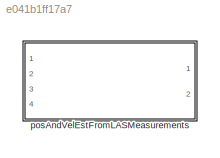
MODEL slx_e041b1ff17a7
KIND library
CONFIG AbsTol = auto
CONFIG EnableMultiTasking = off
CONFIG FixedStep = auto
CONFIG MaxStep = auto
CONFIG MinStep = auto
CONFIG RelTol = 1e-3
CONFIG SampleTimeConstraint = Unconstrained
CONFIG Solver = VariableStepAuto
CONFIG SolverName = VariableStepAuto
CONFIG StartTime = 0.0
CONFIG StopTime = 10.0
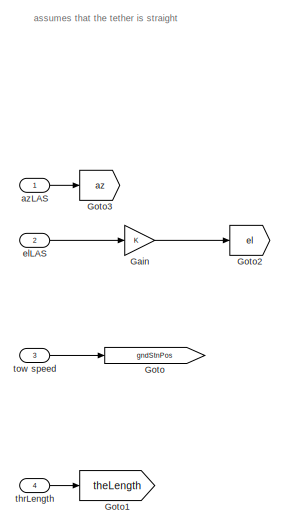
[diagram: posAndVelEstFromLASMeasurements - part 1/2, left side, full height]
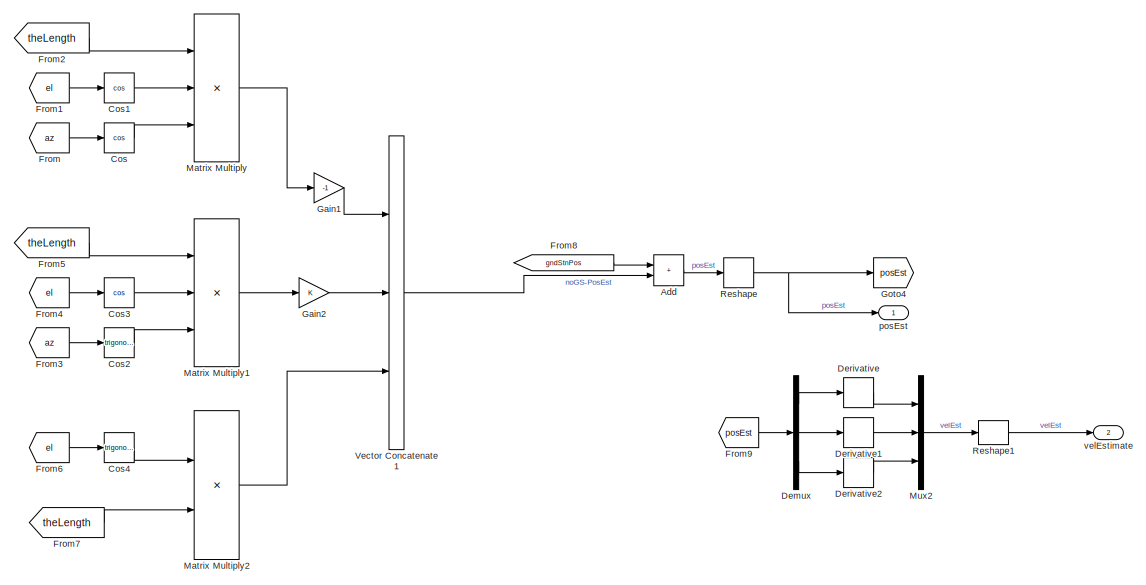
[diagram: posAndVelEstFromLASMeasurements - part 2/2, right side, full height]
BLOCK [SubSystem] posAndVelEstFromLASMeasurements
  Ports = [4, 2]
  RequestExecContextInheritance = off
BLOCK [Sum] posAndVelEstFromLASMeasurements/Add
  IconShape = rectangular
  Ports = [2, 1]
BLOCK [Trigonometry] posAndVelEstFromLASMeasurements/Cos
  Operator = cos
  Ports = [1, 1]
BLOCK [Trigonometry] posAndVelEstFromLASMeasurements/Cos1
  Operator = cos
  Ports = [1, 1]
BLOCK [Trigonometry] posAndVelEstFromLASMeasurements/Cos2
  Ports = [1, 1]
BLOCK [Trigonometry] posAndVelEstFromLASMeasurements/Cos3
  Operator = cos
  Ports = [1, 1]
BLOCK [Trigonometry] posAndVelEstFromLASMeasurements/Cos4
  Ports = [1, 1]
BLOCK [Demux] posAndVelEstFromLASMeasurements/Demux
  Outputs = 3
  Ports = [1, 3]
BLOCK [Derivative] posAndVelEstFromLASMeasurements/Derivative
BLOCK [Derivative] posAndVelEstFromLASMeasurements/Derivative1
BLOCK [Derivative] posAndVelEstFromLASMeasurements/Derivative2
BLOCK [From] posAndVelEstFromLASMeasurements/From
  GotoTag = az
BLOCK [From] posAndVelEstFromLASMeasurements/From1
  GotoTag = el
BLOCK [From] posAndVelEstFromLASMeasurements/From2
  GotoTag = theLength
BLOCK [From] posAndVelEstFromLASMeasurements/From3
  GotoTag = az
BLOCK [From] posAndVelEstFromLASMeasurements/From4
  GotoTag = el
BLOCK [From] posAndVelEstFromLASMeasurements/From5
  GotoTag = theLength
BLOCK [From] posAndVelEstFromLASMeasurements/From6
  GotoTag = el
BLOCK [From] posAndVelEstFromLASMeasurements/From7
  GotoTag = theLength
BLOCK [From] posAndVelEstFromLASMeasurements/From8
  GotoTag = gndStnPos
BLOCK [From] posAndVelEstFromLASMeasurements/From9
  GotoTag = posEst
BLOCK [Gain] posAndVelEstFromLASMeasurements/Gain
BLOCK [Gain] posAndVelEstFromLASMeasurements/Gain1
  Gain = -1
BLOCK [Gain] posAndVelEstFromLASMeasurements/Gain2
BLOCK [Goto] posAndVelEstFromLASMeasurements/Goto
  GotoTag = gndStnPos
BLOCK [Goto] posAndVelEstFromLASMeasurements/Goto1
  GotoTag = theLength
BLOCK [Goto] posAndVelEstFromLASMeasurements/Goto2
  GotoTag = el
BLOCK [Goto] posAndVelEstFromLASMeasurements/Goto3
  GotoTag = az
BLOCK [Goto] posAndVelEstFromLASMeasurements/Goto4
  GotoTag = posEst
BLOCK [Product] posAndVelEstFromLASMeasurements/Matrix Multiply
  Inputs = 3
  Ports = [3, 1]
BLOCK [Product] posAndVelEstFromLASMeasurements/Matrix Multiply1
  Inputs = 3
  Ports = [3, 1]
BLOCK [Product] posAndVelEstFromLASMeasurements/Matrix Multiply2
  Ports = [2, 1]
BLOCK [Mux] posAndVelEstFromLASMeasurements/Mux2
  DisplayOption = bar
  Inputs = 3
  Ports = [3, 1]
BLOCK [Reshape] posAndVelEstFromLASMeasurements/Reshape
  OutputDimensionality = Column vector (2-D)
  Ports = [1, 1]
BLOCK [Reshape] posAndVelEstFromLASMeasurements/Reshape1
  OutputDimensionality = Column vector (2-D)
  Ports = [1, 1]
BLOCK [Concatenate] posAndVelEstFromLASMeasurements/Vector Concatenate1
  NumInputs = 3
  Ports = [3, 1]
BLOCK [Inport] posAndVelEstFromLASMeasurements/azLAS
BLOCK [Inport] posAndVelEstFromLASMeasurements/elLAS
  Port = 2
BLOCK [Outport] posAndVelEstFromLASMeasurements/posEst
BLOCK [Inport] posAndVelEstFromLASMeasurements/thrLength
  Port = 4
BLOCK [Inport] posAndVelEstFromLASMeasurements/tow speed
  Port = 3
BLOCK [Outport] posAndVelEstFromLASMeasurements/velEstimate
  Port = 2
ANNOTATION posAndVelEstFromLASMeasurements: assumes that the tether is straight
LINE posAndVelEstFromLASMeasurements/Add:1 -> posAndVelEstFromLASMeasurements/Reshape:1
LINE posAndVelEstFromLASMeasurements/Cos1:1 -> posAndVelEstFromLASMeasurements/Matrix Multiply:2
LINE posAndVelEstFromLASMeasurements/Cos2:1 -> posAndVelEstFromLASMeasurements/Matrix Multiply1:3
LINE posAndVelEstFromLASMeasurements/Cos3:1 -> posAndVelEstFromLASMeasurements/Matrix Multiply1:2
LINE posAndVelEstFromLASMeasurements/Cos4:1 -> posAndVelEstFromLASMeasurements/Matrix Multiply2:1
LINE posAndVelEstFromLASMeasurements/Cos:1 -> posAndVelEstFromLASMeasurements/Matrix Multiply:3
LINE posAndVelEstFromLASMeasurements/Demux:1 -> posAndVelEstFromLASMeasurements/Derivative:1
LINE posAndVelEstFromLASMeasurements/Demux:2 -> posAndVelEstFromLASMeasurements/Derivative1:1
LINE posAndVelEstFromLASMeasurements/Demux:3 -> posAndVelEstFromLASMeasurements/Derivative2:1
LINE posAndVelEstFromLASMeasurements/Derivative1:1 -> posAndVelEstFromLASMeasurements/Mux2:2
LINE posAndVelEstFromLASMeasurements/Derivative2:1 -> posAndVelEstFromLASMeasurements/Mux2:3
LINE posAndVelEstFromLASMeasurements/Derivative:1 -> posAndVelEstFromLASMeasurements/Mux2:1
LINE posAndVelEstFromLASMeasurements/From1:1 -> posAndVelEstFromLASMeasurements/Cos1:1
LINE posAndVelEstFromLASMeasurements/From2:1 -> posAndVelEstFromLASMeasurements/Matrix Multiply:1
LINE posAndVelEstFromLASMeasurements/From3:1 -> posAndVelEstFromLASMeasurements/Cos2:1
LINE posAndVelEstFromLASMeasurements/From4:1 -> posAndVelEstFromLASMeasurements/Cos3:1
LINE posAndVelEstFromLASMeasurements/From5:1 -> posAndVelEstFromLASMeasurements/Matrix Multiply1:1
LINE posAndVelEstFromLASMeasurements/From6:1 -> posAndVelEstFromLASMeasurements/Cos4:1
LINE posAndVelEstFromLASMeasurements/From7:1 -> posAndVelEstFromLASMeasurements/Matrix Multiply2:2
LINE posAndVelEstFromLASMeasurements/From8:1 -> posAndVelEstFromLASMeasurements/Add:1
LINE posAndVelEstFromLASMeasurements/From9:1 -> posAndVelEstFromLASMeasurements/Demux:1
LINE posAndVelEstFromLASMeasurements/From:1 -> posAndVelEstFromLASMeasurements/Cos:1
LINE posAndVelEstFromLASMeasurements/Gain1:1 -> posAndVelEstFromLASMeasurements/Vector Concatenate1:1
LINE posAndVelEstFromLASMeasurements/Gain2:1 -> posAndVelEstFromLASMeasurements/Vector Concatenate1:2
LINE posAndVelEstFromLASMeasurements/Gain:1 -> posAndVelEstFromLASMeasurements/Goto2:1
LINE posAndVelEstFromLASMeasurements/Matrix Multiply1:1 -> posAndVelEstFromLASMeasurements/Gain2:1
LINE posAndVelEstFromLASMeasurements/Matrix Multiply2:1 -> posAndVelEstFromLASMeasurements/Vector Concatenate1:3
LINE posAndVelEstFromLASMeasurements/Matrix Multiply:1 -> posAndVelEstFromLASMeasurements/Gain1:1
LINE posAndVelEstFromLASMeasurements/Mux2:1 -> posAndVelEstFromLASMeasurements/Reshape1:1
LINE posAndVelEstFromLASMeasurements/Reshape1:1 -> posAndVelEstFromLASMeasurements/velEstimate:1
NET posAndVelEstFromLASMeasurements/Reshape:1 -> posAndVelEstFromLASMeasurements/Goto4:1, posAndVelEstFromLASMeasurements/posEst:1
LINE posAndVelEstFromLASMeasurements/Vector Concatenate1:1 -> posAndVelEstFromLASMeasurements/Add:2
LINE posAndVelEstFromLASMeasurements/azLAS:1 -> posAndVelEstFromLASMeasurements/Goto3:1
LINE posAndVelEstFromLASMeasurements/elLAS:1 -> posAndVelEstFromLASMeasurements/Gain:1
LINE posAndVelEstFromLASMeasurements/thrLength:1 -> posAndVelEstFromLASMeasurements/Goto1:1
LINE posAndVelEstFromLASMeasurements/tow speed:1 -> posAndVelEstFromLASMeasurements/Goto:1
note: NET lines group one-source signal fan-out (src -> all destinations, sorted); 1:1 wires keep LINE
